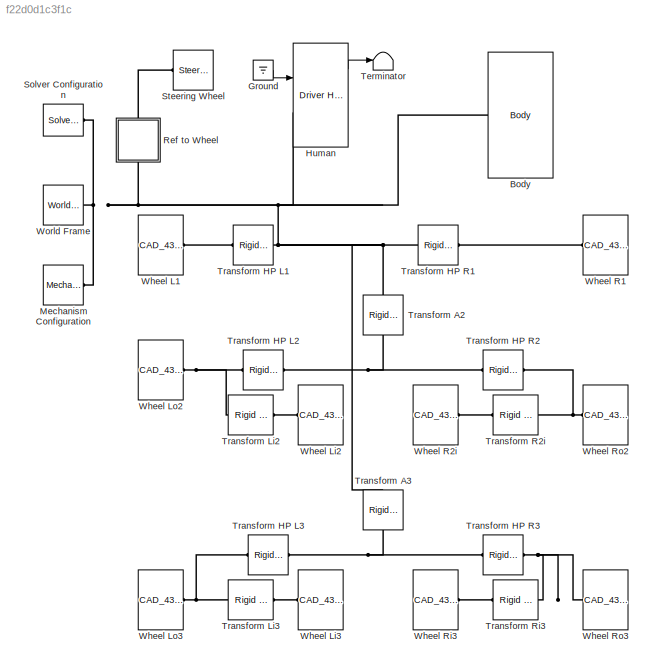
MODEL slx_f22d0d1c3f1c
KIND model
CONFIG AbsTol = auto
CONFIG EnableMultiTasking = on
CONFIG FixedStep = auto
CONFIG MaxStep = auto
CONFIG MinStep = auto
CONFIG RelTol = 1e-3
CONFIG SampleTimeConstraint = Unconstrained
CONFIG SolverName = VariableStepAuto
CONFIG StartTime = 0.0
CONFIG StopTime = 10.0
BLOCK [Reference] Body  REF=Truck_Amandla_Parts/Body
  Ports = [0, 0, 0, 0, 0, 1]
  SourceBlock = Truck_Amandla_Parts/Body
BLOCK [Ground] Ground
BLOCK [Reference] Human  REF=Human_Models/Driver Human Seated
  Ports = [1, 1, 0, 0, 0, 1, 2]
  SourceBlock = Human_Models/Driver Human Seated
BLOCK [Reference] Mechanism Configuration  REF=sm_lib/Utilities/Mechanism
Configuration
  Ports = [0, 0, 0, 0, 0, 0, 1]
  SourceBlock = sm_lib/Utilities/Mechanism\nConfiguration
  SourceProductBaseCode = MS
  SourceType = Mechanism\nConfiguration
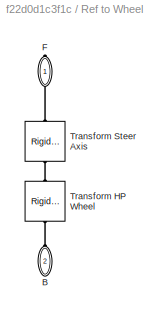
BLOCK [SubSystem] Ref to Wheel
  NameLocation = right
  Ports = [0, 0, 0, 0, 0, 1, 1]
  RequestExecContextInheritance = off
BLOCK [PMIOPort] Ref to Wheel/B
  NameLocation = right
  Port = 2
  Side = Left
BLOCK [PMIOPort] Ref to Wheel/F
  NameLocation = left
  Side = Right
BLOCK [Reference] Ref to Wheel/Transform HP Wheel  REF=sm_lib/Frames and
Transforms/Rigid
Transform
  NameLocation = left
  Ports = [0, 0, 0, 0, 0, 1, 1]
  SourceBlock = sm_lib/Frames and\nTransforms/Rigid\nTransform
  SourceProductBaseCode = MS
  SourceType = Rigid\nTransform
BLOCK [Reference] Ref to Wheel/Transform Steer Axis  REF=sm_lib/Frames and
Transforms/Rigid
Transform
  NameLocation = left
  Ports = [0, 0, 0, 0, 0, 1, 1]
  SourceBlock = sm_lib/Frames and\nTransforms/Rigid\nTransform
  SourceProductBaseCode = MS
  SourceType = Rigid\nTransform
BLOCK [Reference] Solver Configuration  REF=nesl_utility/Solver
Configuration
  Ports = [0, 0, 0, 0, 0, 0, 1]
  SourceBlock = nesl_utility/Solver\nConfiguration
  SourceProductBaseCode = SS,PW,VE
  SourceType = Solver\nConfiguration
BLOCK [Reference] Steering Wheel  REF=Bus_Makhulu_Parts/Steering Wheel
  Ports = [0, 0, 0, 0, 0, 1]
  SourceBlock = Bus_Makhulu_Parts/Steering Wheel
  SourceType = SubSystem
BLOCK [Terminator] Terminator
BLOCK [Reference] Transform A2  REF=sm_lib/Frames and
Transforms/Rigid
Transform
  NameLocation = right
  Ports = [0, 0, 0, 0, 0, 1, 1]
  SourceBlock = sm_lib/Frames and\nTransforms/Rigid\nTransform
  SourceProductBaseCode = MS
  SourceType = Rigid\nTransform
BLOCK [Reference] Transform A3  REF=sm_lib/Frames and
Transforms/Rigid
Transform
  NameLocation = right
  Ports = [0, 0, 0, 0, 0, 1, 1]
  SourceBlock = sm_lib/Frames and\nTransforms/Rigid\nTransform
  SourceProductBaseCode = MS
  SourceType = Rigid\nTransform
BLOCK [Reference] Transform HP L1  REF=sm_lib/Frames and
Transforms/Rigid
Transform
  Ports = [0, 0, 0, 0, 0, 1, 1]
  SourceBlock = sm_lib/Frames and\nTransforms/Rigid\nTransform
  SourceProductBaseCode = MS
  SourceType = Rigid\nTransform
BLOCK [Reference] Transform HP L2  REF=sm_lib/Frames and
Transforms/Rigid
Transform
  NameLocation = top
  Ports = [0, 0, 0, 0, 0, 1, 1]
  SourceBlock = sm_lib/Frames and\nTransforms/Rigid\nTransform
  SourceProductBaseCode = MS
  SourceType = Rigid\nTransform
BLOCK [Reference] Transform HP L3  REF=sm_lib/Frames and
Transforms/Rigid
Transform
  NameLocation = top
  Ports = [0, 0, 0, 0, 0, 1, 1]
  SourceBlock = sm_lib/Frames and\nTransforms/Rigid\nTransform
  SourceProductBaseCode = MS
  SourceType = Rigid\nTransform
BLOCK [Reference] Transform HP R1  REF=sm_lib/Frames and
Transforms/Rigid
Transform
  Ports = [0, 0, 0, 0, 0, 1, 1]
  SourceBlock = sm_lib/Frames and\nTransforms/Rigid\nTransform
  SourceProductBaseCode = MS
  SourceType = Rigid\nTransform
BLOCK [Reference] Transform HP R2  REF=sm_lib/Frames and
Transforms/Rigid
Transform
  NameLocation = top
  Ports = [0, 0, 0, 0, 0, 1, 1]
  SourceBlock = sm_lib/Frames and\nTransforms/Rigid\nTransform
  SourceProductBaseCode = MS
  SourceType = Rigid\nTransform
BLOCK [Reference] Transform HP R3  REF=sm_lib/Frames and
Transforms/Rigid
Transform
  NameLocation = top
  Ports = [0, 0, 0, 0, 0, 1, 1]
  SourceBlock = sm_lib/Frames and\nTransforms/Rigid\nTransform
  SourceProductBaseCode = MS
  SourceType = Rigid\nTransform
BLOCK [Reference] Transform Li2  REF=sm_lib/Frames and
Transforms/Rigid
Transform
  Ports = [0, 0, 0, 0, 0, 1, 1]
  SourceBlock = sm_lib/Frames and\nTransforms/Rigid\nTransform
  SourceProductBaseCode = MS
  SourceType = Rigid\nTransform
BLOCK [Reference] Transform Li3  REF=sm_lib/Frames and
Transforms/Rigid
Transform
  Ports = [0, 0, 0, 0, 0, 1, 1]
  SourceBlock = sm_lib/Frames and\nTransforms/Rigid\nTransform
  SourceProductBaseCode = MS
  SourceType = Rigid\nTransform
BLOCK [Reference] Transform R2i  REF=sm_lib/Frames and
Transforms/Rigid
Transform
  Ports = [0, 0, 0, 0, 0, 1, 1]
  SourceBlock = sm_lib/Frames and\nTransforms/Rigid\nTransform
  SourceProductBaseCode = MS
  SourceType = Rigid\nTransform
BLOCK [Reference] Transform Ri3  REF=sm_lib/Frames and
Transforms/Rigid
Transform
  Ports = [0, 0, 0, 0, 0, 1, 1]
  SourceBlock = sm_lib/Frames and\nTransforms/Rigid\nTransform
  SourceProductBaseCode = MS
  SourceType = Rigid\nTransform
BLOCK [Reference] Wheel L1  REF=Truck_Amandla_Parts/CAD_430_50R38
  AttributesFormatString = %<LabelModeActiveChoice>
  Ports = [0, 0, 0, 0, 0, 1]
  SourceBlock = Truck_Amandla_Parts/CAD_430_50R38
BLOCK [Reference] Wheel Li2  REF=Truck_Amandla_Parts/CAD_430_50R38
  AttributesFormatString = %<LabelModeActiveChoice>
  Ports = [0, 0, 0, 0, 0, 1]
  SourceBlock = Truck_Amandla_Parts/CAD_430_50R38
BLOCK [Reference] Wheel Li3  REF=Truck_Amandla_Parts/CAD_430_50R38
  AttributesFormatString = %<LabelModeActiveChoice>
  Ports = [0, 0, 0, 0, 0, 1]
  SourceBlock = Truck_Amandla_Parts/CAD_430_50R38
BLOCK [Reference] Wheel Lo2  REF=Truck_Amandla_Parts/CAD_430_50R38
  AttributesFormatString = %<LabelModeActiveChoice>
  Ports = [0, 0, 0, 0, 0, 1]
  SourceBlock = Truck_Amandla_Parts/CAD_430_50R38
BLOCK [Reference] Wheel Lo3  REF=Truck_Amandla_Parts/CAD_430_50R38
  AttributesFormatString = %<LabelModeActiveChoice>
  Ports = [0, 0, 0, 0, 0, 1]
  SourceBlock = Truck_Amandla_Parts/CAD_430_50R38
BLOCK [Reference] Wheel R1  REF=Truck_Amandla_Parts/CAD_430_50R38
  AttributesFormatString = %<LabelModeActiveChoice>
  Ports = [0, 0, 0, 0, 0, 1]
  SourceBlock = Truck_Amandla_Parts/CAD_430_50R38
BLOCK [Reference] Wheel R2i  REF=Truck_Amandla_Parts/CAD_430_50R38
  AttributesFormatString = %<LabelModeActiveChoice>
  Ports = [0, 0, 0, 0, 0, 1]
  SourceBlock = Truck_Amandla_Parts/CAD_430_50R38
BLOCK [Reference] Wheel Ri3  REF=Truck_Amandla_Parts/CAD_430_50R38
  AttributesFormatString = %<LabelModeActiveChoice>
  Ports = [0, 0, 0, 0, 0, 1]
  SourceBlock = Truck_Amandla_Parts/CAD_430_50R38
BLOCK [Reference] Wheel Ro2  REF=Truck_Amandla_Parts/CAD_430_50R38
  AttributesFormatString = %<LabelModeActiveChoice>
  Ports = [0, 0, 0, 0, 0, 1]
  SourceBlock = Truck_Amandla_Parts/CAD_430_50R38
BLOCK [Reference] Wheel Ro3  REF=Truck_Amandla_Parts/CAD_430_50R38
  AttributesFormatString = %<LabelModeActiveChoice>
  Ports = [0, 0, 0, 0, 0, 1]
  SourceBlock = Truck_Amandla_Parts/CAD_430_50R38
BLOCK [Reference] World Frame  REF=sm_lib/Frames and
Transforms/World Frame
  Ports = [0, 0, 0, 0, 0, 0, 1]
  SourceBlock = sm_lib/Frames and\nTransforms/World Frame
  SourceProductBaseCode = MS
  SourceType = World Frame
LINE Ground:1 -> Human:1
LINE Human:1 -> Terminator:1
PNET net1: Body:LConn1 -- Human:LConn1 -- Mechanism Configuration:RConn1 -- Ref to Wheel:LConn1 -- Solver Configuration:RConn1 -- Transform A2:LConn1 -- Transform A3:LConn1 -- Transform HP L1:LConn1 -- Transform HP R1:LConn1 -- World Frame:RConn1
PLINE Ref to Wheel/B:RConn1 -- Ref to Wheel/Transform HP Wheel:LConn1
PLINE Ref to Wheel/F:RConn1 -- Ref to Wheel/Transform Steer Axis:RConn1
PLINE Ref to Wheel/Transform HP Wheel:RConn1 -- Ref to Wheel/Transform Steer Axis:LConn1
PLINE Ref to Wheel:RConn1 -- Steering Wheel:LConn1
PNET net2: Transform A2:RConn1 -- Transform HP L2:LConn1 -- Transform HP R2:LConn1
PNET net3: Transform A3:RConn1 -- Transform HP L3:LConn1 -- Transform HP R3:LConn1
PLINE Transform HP L1:RConn1 -- Wheel L1:LConn1
PNET net4: Transform HP L2:RConn1 -- Transform Li2:LConn1 -- Wheel Lo2:LConn1
PNET net5: Transform HP L3:RConn1 -- Transform Li3:LConn1 -- Wheel Lo3:LConn1
PLINE Transform HP R1:RConn1 -- Wheel R1:LConn1
PNET net6: Transform HP R2:RConn1 -- Transform R2i:LConn1 -- Wheel Ro2:LConn1
PNET net7: Transform HP R3:RConn1 -- Transform Ri3:LConn1 -- Wheel Ro3:LConn1
PLINE Transform Li2:RConn1 -- Wheel Li2:LConn1
PLINE Transform Li3:RConn1 -- Wheel Li3:LConn1
PLINE Transform R2i:RConn1 -- Wheel R2i:LConn1
PLINE Transform Ri3:RConn1 -- Wheel Ri3:LConn1
note: PNET lines group multi-terminal physical nets as a canonical sorted terminal list (undirected conserving connections); 2-terminal nets keep the pairwise PLINE form
